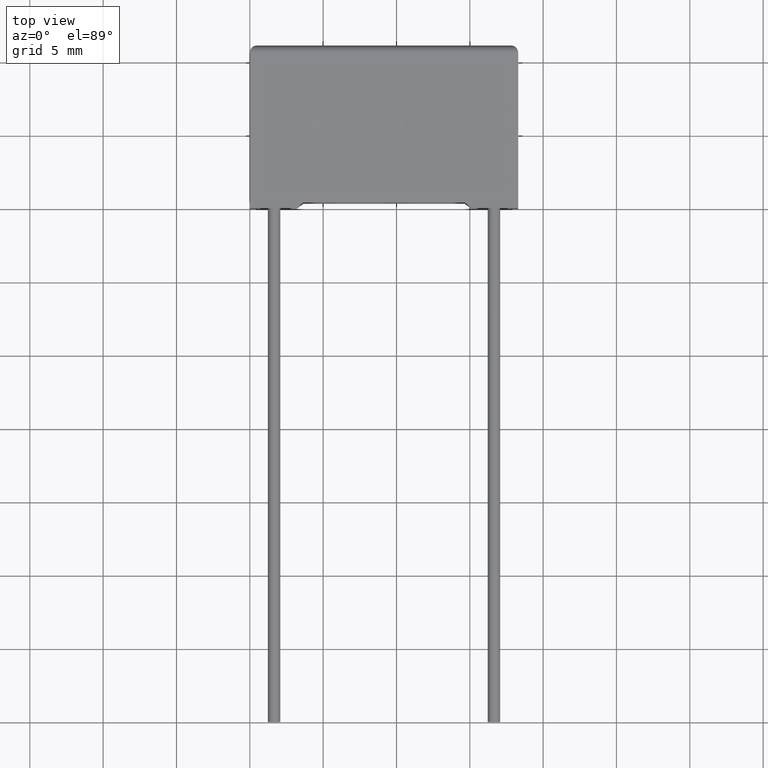
[diagram: clean part render]
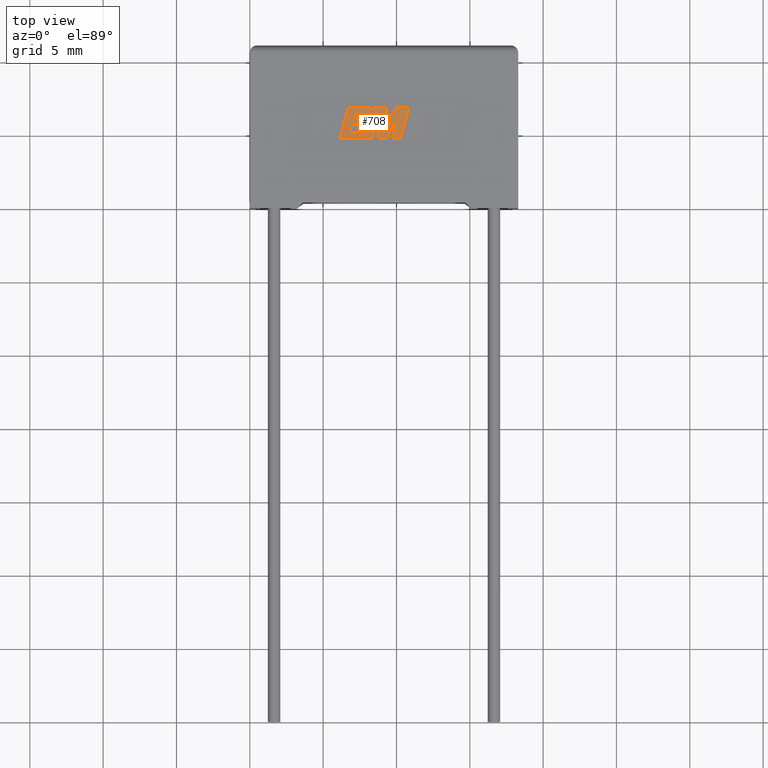
[diagram: same view with one face highlighted and labeled with its STEP entity id]
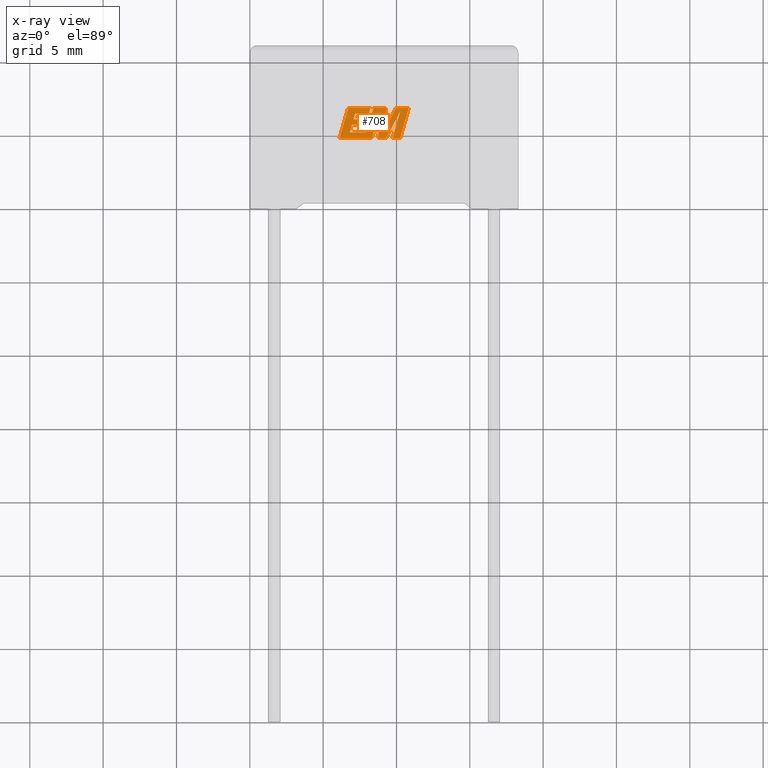
[diagram: x-ray of the same camera — body ghosted, the highlighted face saturated]
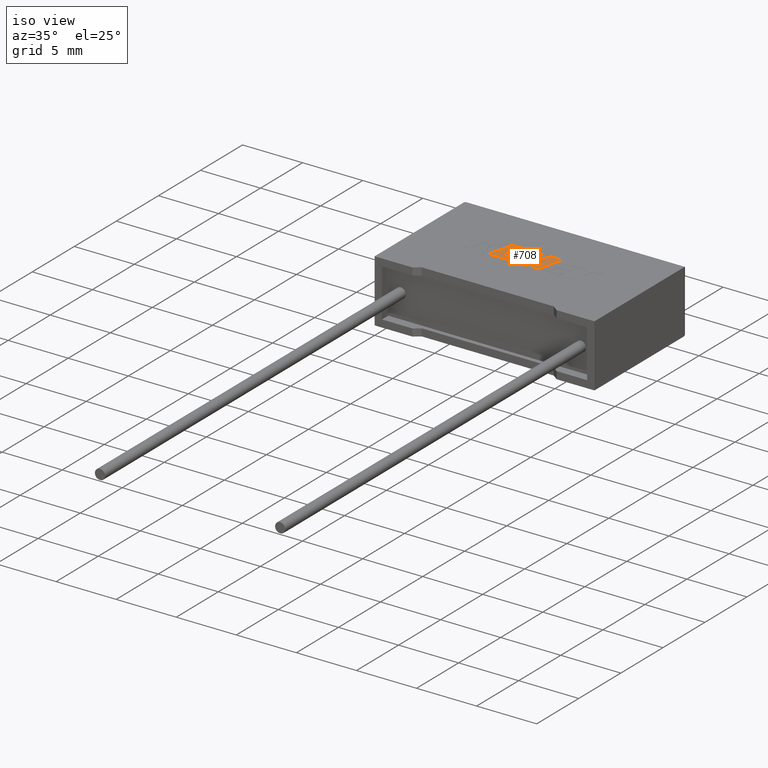
[diagram: same view with one face highlighted and labeled with its STEP entity id]
A machine part, top view. The second image highlights one B-rep face of the part: STEP entity #708.
The next image is the same camera in x-ray: the body ghosted, the highlighted face saturated — about 0% of this face is hidden behind the body in this view.
A second angle (iso view) of the same face is appended — the face is thin or edge-on in the first view.
In plain terms, the highlighted planar face has unit normal (0, 0, -1).
Its self-contained STEP definition (entity closure, byte-faithful):
#10 = VECTOR ( 'NONE', #765, 1000.000000000000000 ) ;
#58 = CARTESIAN_POINT ( 'NONE',  ( 7.950472854412912405, 5.166296892129775387, 5.204999999999999183 ) ) ;
#108 = CARTESIAN_POINT ( 'NONE',  ( 7.178404472403894232, 6.435923639161655885, 5.204999999999999183 ) ) ;
#124 = ORIENTED_EDGE ( 'NONE', *, *, #2098, .T. ) ;
#162 = EDGE_CURVE ( 'NONE', #2722, #1003, #2226, .T. ) ;
#187 = VERTEX_POINT ( 'NONE', #938 ) ;
#211 = EDGE_CURVE ( 'NONE', #187, #2741, #2285, .T. ) ;
#223 = ORIENTED_EDGE ( 'NONE', *, *, #822, .T. ) ;
#225 = VECTOR ( 'NONE', #2738, 1000.000000000000227 ) ;
#232 = DIRECTION ( 'NONE',  ( 0.2763139702539113007, 0.9610674221107073922, 0.000000000000000000 ) ) ;
#236 = DIRECTION ( 'NONE',  ( 1.000000000000000000, 4.783739767952858963E-16, 0.000000000000000000 ) ) ;
#237 = VECTOR ( 'NONE', #1536, 1000.000000000000227 ) ;
#241 = EDGE_LOOP ( 'NONE', ( #1414, #2481, #1356, #2077, #1656, #652, #1871, #223, #984, #1022, #656, #2662, #1004, #124, #2782, #2989, #335, #1482, #1600, #1500, #2815, #1972, #3020 ) ) ;
#244 = EDGE_CURVE ( 'NONE', #2741, #2144, #2576, .T. ) ;
#266 = EDGE_CURVE ( 'NONE', #2786, #2284, #2542, .T. ) ;
#280 = VECTOR ( 'NONE', #390, 1000.000000000000114 ) ;
#298 = CARTESIAN_POINT ( 'NONE',  ( 9.947927223384223083, 6.826083738474082452, 5.204999999999999183 ) ) ;
#332 = VECTOR ( 'NONE', #232, 1000.000000000000114 ) ;
#335 = ORIENTED_EDGE ( 'NONE', *, *, #1394, .T. ) ;
#344 = CARTESIAN_POINT ( 'NONE',  ( 8.223106891968908982, 6.826083738474082452, 5.204999999999999183 ) ) ;
#369 = VERTEX_POINT ( 'NONE', #298 ) ;
#381 = DIRECTION ( 'NONE',  ( 0.2732148821746286371, 0.9619530280415482526, 0.000000000000000000 ) ) ;
#390 = DIRECTION ( 'NONE',  ( 0.2740217765954066076, 0.9617234872620595842, 0.000000000000000000 ) ) ;
#392 = DIRECTION ( 'NONE',  ( -1.000000000000000000, 0.000000000000000000, 0.000000000000000000 ) ) ;
#477 = CARTESIAN_POINT ( 'NONE',  ( 6.118980910089239167, 4.776329999999934905, 5.204999999999999183 ) ) ;
#482 = CARTESIAN_POINT ( 'NONE',  ( 7.947244424658283179, 6.054669767896145416, 5.204999999999999183 ) ) ;
#489 = VECTOR ( 'NONE', #1042, 1000.000000000000000 ) ;
#499 = DIRECTION ( 'NONE',  ( 0.000000000000000000, 0.000000000000000000, -1.000000000000000000 ) ) ;
#543 = LINE ( 'NONE', #556, #2113 ) ;
#551 = VERTEX_POINT ( 'NONE', #1744 ) ;
#556 = CARTESIAN_POINT ( 'NONE',  ( 8.223106891968908982, 6.826083738474082452, 5.204999999999999183 ) ) ;
#565 = AXIS2_PLACEMENT_3D ( 'NONE', #2166, #499, #1939 ) ;
#599 = CARTESIAN_POINT ( 'NONE',  ( 7.067466152442150040, 6.054669767896145416, 5.204999999999999183 ) ) ;
#625 = CARTESIAN_POINT ( 'NONE',  ( 8.112293221804671717, 6.435923639161655885, 5.204999999999999183 ) ) ;
#652 = ORIENTED_EDGE ( 'NONE', *, *, #2582, .T. ) ;
#656 = ORIENTED_EDGE ( 'NONE', *, *, #2413, .T. ) ;
#682 = LINE ( 'NONE', #1621, #2185 ) ;
#695 = VERTEX_POINT ( 'NONE', #2133 ) ;
#708 = ADVANCED_FACE ( 'NONE', ( #2883 ), #1438, .F. ) ;
#712 = EDGE_CURVE ( 'NONE', #2562, #1914, #1954, .T. ) ;
#716 = CARTESIAN_POINT ( 'NONE',  ( 9.221647422191399102, 5.361713331603874089, 5.204999999999999183 ) ) ;
#739 = VECTOR ( 'NONE', #2919, 1000.000000000000000 ) ;
#750 = EDGE_CURVE ( 'NONE', #2425, #2015, #2009, .T. ) ;
#765 = DIRECTION ( 'NONE',  ( 0.2746459304916892830, 0.9615454294334481178, 0.000000000000000000 ) ) ;
#794 = VERTEX_POINT ( 'NONE', #852 ) ;
#822 = EDGE_CURVE ( 'NONE', #2981, #2562, #1993, .T. ) ;
#831 = LINE ( 'NONE', #1118, #739 ) ;
#833 = DIRECTION ( 'NONE',  ( 1.000000000000000000, 0.000000000000000000, 0.000000000000000000 ) ) ;
#842 = LINE ( 'NONE', #2262, #1572 ) ;
#852 = CARTESIAN_POINT ( 'NONE',  ( 8.851161128560534053, 6.601171875984305437, 5.204999999999999183 ) ) ;
#897 = LINE ( 'NONE', #935, #2892 ) ;
#934 = VECTOR ( 'NONE', #1029, 1000.000000000000000 ) ;
#935 = CARTESIAN_POINT ( 'NONE',  ( 10.84693527213674891, 6.826083738474082452, 5.204999999999999183 ) ) ;
#938 = CARTESIAN_POINT ( 'NONE',  ( 6.708817521994718369, 6.826083738474082452, 5.204999999999999183 ) ) ;
#983 = CARTESIAN_POINT ( 'NONE',  ( 7.839011005306755209, 5.675740615357458552, 5.204999999999999183 ) ) ;
#984 = ORIENTED_EDGE ( 'NONE', *, *, #712, .T. ) ;
#1003 = VERTEX_POINT ( 'NONE', #1490 ) ;
#1004 = ORIENTED_EDGE ( 'NONE', *, *, #2426, .T. ) ;
#1022 = ORIENTED_EDGE ( 'NONE', *, *, #2356, .T. ) ;
#1029 = DIRECTION ( 'NONE',  ( -1.000000000000000000, 0.000000000000000000, 0.000000000000000000 ) ) ;
#1042 = DIRECTION ( 'NONE',  ( 0.4668459304955080436, 0.8843386665637680277, 0.000000000000000000 ) ) ;
#1064 = LINE ( 'NONE', #1788, #2447 ) ;
#1081 = CARTESIAN_POINT ( 'NONE',  ( 6.118980910089239167, 4.776329999999934905, 5.204999999999999183 ) ) ;
#1097 = CARTESIAN_POINT ( 'NONE',  ( 7.178404472403894232, 6.435923639161655885, 5.204999999999999183 ) ) ;
#1112 = VECTOR ( 'NONE', #236, 1000.000000000000000 ) ;
#1115 = EDGE_CURVE ( 'NONE', #794, #2617, #682, .T. ) ;
#1118 = CARTESIAN_POINT ( 'NONE',  ( 7.947244424658283179, 6.054669767896145416, 5.204999999999999183 ) ) ;
#1141 = VERTEX_POINT ( 'NONE', #1341 ) ;
#1176 = CARTESIAN_POINT ( 'NONE',  ( 6.708817521994718369, 6.826083738474082452, 5.204999999999999183 ) ) ;
#1231 = VERTEX_POINT ( 'NONE', #716 ) ;
#1267 = VERTEX_POINT ( 'NONE', #1776 ) ;
#1292 = LINE ( 'NONE', #1806, #225 ) ;
#1321 = CARTESIAN_POINT ( 'NONE',  ( 9.221647422191399102, 5.361713331603874089, 5.204999999999999183 ) ) ;
#1341 = CARTESIAN_POINT ( 'NONE',  ( 9.300475089700450226, 6.826083738474082452, 5.204999999999999183 ) ) ;
#1356 = ORIENTED_EDGE ( 'NONE', *, *, #1367, .T. ) ;
#1367 = EDGE_CURVE ( 'NONE', #1231, #1141, #2689, .T. ) ;
#1394 = EDGE_CURVE ( 'NONE', #2144, #794, #1292, .T. ) ;
#1414 = ORIENTED_EDGE ( 'NONE', *, *, #1484, .T. ) ;
#1437 = VERTEX_POINT ( 'NONE', #2088 ) ;
#1438 = PLANE ( 'NONE',  #565 ) ;
#1458 = EDGE_CURVE ( 'NONE', #1437, #551, #3039, .T. ) ;
#1466 = DIRECTION ( 'NONE',  ( 1.000000000000000000, 0.000000000000000000, 0.000000000000000000 ) ) ;
#1477 = LINE ( 'NONE', #2007, #489 ) ;
#1479 = CARTESIAN_POINT ( 'NONE',  ( 6.959357382888240018, 5.675740615357458552, 5.204999999999999183 ) ) ;
#1482 = ORIENTED_EDGE ( 'NONE', *, *, #1115, .T. ) ;
#1484 = EDGE_CURVE ( 'NONE', #551, #369, #897, .T. ) ;
#1489 = EDGE_CURVE ( 'NONE', #369, #1231, #1579, .T. ) ;
#1490 = CARTESIAN_POINT ( 'NONE',  ( 8.112293221804671717, 6.435923639161655885, 5.204999999999999183 ) ) ;
#1493 = VECTOR ( 'NONE', #2900, 1000.000000000000000 ) ;
#1500 = ORIENTED_EDGE ( 'NONE', *, *, #2044, .T. ) ;
#1520 = DIRECTION ( 'NONE',  ( 0.05375259206908576670, 0.9985542843760946141, 0.000000000000000000 ) ) ;
#1528 = CARTESIAN_POINT ( 'NONE',  ( 8.427557490167984611, 6.826083738474082452, 5.204999999999999183 ) ) ;
#1536 = DIRECTION ( 'NONE',  ( 0.2793947940878294123, 0.9601763114327593884, 0.000000000000000000 ) ) ;
#1543 = LINE ( 'NONE', #1770, #280 ) ;
#1564 = VECTOR ( 'NONE', #1881, 1000.000000000000227 ) ;
#1571 = EDGE_CURVE ( 'NONE', #2617, #2268, #1940, .T. ) ;
#1572 = VECTOR ( 'NONE', #2946, 1000.000000000000000 ) ;
#1579 = LINE ( 'NONE', #2794, #1564 ) ;
#1600 = ORIENTED_EDGE ( 'NONE', *, *, #1571, .T. ) ;
#1615 = DIRECTION ( 'NONE',  ( -0.2760118818968579912, -0.9611542233438683525, 0.000000000000000000 ) ) ;
#1621 = CARTESIAN_POINT ( 'NONE',  ( 8.851161128560534053, 6.601171875984305437, 5.204999999999999183 ) ) ;
#1622 = VECTOR ( 'NONE', #381, 1000.000000000000227 ) ;
#1656 = ORIENTED_EDGE ( 'NONE', *, *, #750, .T. ) ;
#1701 = CARTESIAN_POINT ( 'NONE',  ( 9.295319520239521793, 4.776329999999935794, 5.204999999999999183 ) ) ;
#1704 = VECTOR ( 'NONE', #2559, 999.9999999999998863 ) ;
#1715 = CARTESIAN_POINT ( 'NONE',  ( 8.748873504561524683, 4.776329999999935794, 5.204999999999999183 ) ) ;
#1744 = CARTESIAN_POINT ( 'NONE',  ( 10.84693527213674891, 6.826083738474082452, 5.204999999999999183 ) ) ;
#1770 = CARTESIAN_POINT ( 'NONE',  ( 6.814202693454946669, 5.166296892129775387, 5.204999999999999183 ) ) ;
#1776 = CARTESIAN_POINT ( 'NONE',  ( 6.814202693454946669, 5.166296892129775387, 5.204999999999999183 ) ) ;
#1786 = EDGE_CURVE ( 'NONE', #1267, #2981, #1543, .T. ) ;
#1788 = CARTESIAN_POINT ( 'NONE',  ( 9.300475089700450226, 6.826083738474082452, 5.204999999999999183 ) ) ;
#1794 = VERTEX_POINT ( 'NONE', #344 ) ;
#1796 = DIRECTION ( 'NONE',  ( -0.05596501978069369498, -0.9984327301130239141, 0.000000000000000000 ) ) ;
#1806 = CARTESIAN_POINT ( 'NONE',  ( 8.327195703898469858, 4.776329999999935794, 5.204999999999999183 ) ) ;
#1848 = DIRECTION ( 'NONE',  ( -1.000000000000000000, 0.000000000000000000, 0.000000000000000000 ) ) ;
#1871 = ORIENTED_EDGE ( 'NONE', *, *, #1786, .T. ) ;
#1881 = DIRECTION ( 'NONE',  ( -0.4443210308329518243, -0.8958676361826801715, 0.000000000000000000 ) ) ;
#1908 = CARTESIAN_POINT ( 'NONE',  ( 7.839011005306755209, 5.675740615357458552, 5.204999999999999183 ) ) ;
#1914 = VERTEX_POINT ( 'NONE', #482 ) ;
#1939 = DIRECTION ( 'NONE',  ( -1.000000000000000000, 0.000000000000000000, 0.000000000000000000 ) ) ;
#1940 = LINE ( 'NONE', #2825, #2692 ) ;
#1944 = CARTESIAN_POINT ( 'NONE',  ( 9.736741848859448822, 4.776329999999935794, 5.204999999999999183 ) ) ;
#1954 = LINE ( 'NONE', #1908, #10 ) ;
#1972 = ORIENTED_EDGE ( 'NONE', *, *, #2770, .T. ) ;
#1993 = LINE ( 'NONE', #1479, #1493 ) ;
#2007 = CARTESIAN_POINT ( 'NONE',  ( 9.295319520239521793, 4.776329999999935794, 5.204999999999999183 ) ) ;
#2009 = LINE ( 'NONE', #1528, #2142 ) ;
#2015 = VERTEX_POINT ( 'NONE', #2696 ) ;
#2020 = CARTESIAN_POINT ( 'NONE',  ( 8.427557490167984611, 6.826083738474082452, 5.204999999999999183 ) ) ;
#2044 = EDGE_CURVE ( 'NONE', #2268, #2786, #1477, .T. ) ;
#2077 = ORIENTED_EDGE ( 'NONE', *, *, #2789, .T. ) ;
#2088 = CARTESIAN_POINT ( 'NONE',  ( 10.25761595853780150, 4.776329999999935794, 5.204999999999999183 ) ) ;
#2098 = EDGE_CURVE ( 'NONE', #1794, #187, #543, .T. ) ;
#2113 = VECTOR ( 'NONE', #2187, 1000.000000000000000 ) ;
#2133 = CARTESIAN_POINT ( 'NONE',  ( 7.067466152442150040, 6.054669767896145416, 5.204999999999999183 ) ) ;
#2142 = VECTOR ( 'NONE', #2478, 1000.000000000000227 ) ;
#2144 = VERTEX_POINT ( 'NONE', #2364 ) ;
#2166 = CARTESIAN_POINT ( 'NONE',  ( -0.2224830842431323175, -1.858056502638177898, 5.204999999999999183 ) ) ;
#2185 = VECTOR ( 'NONE', #1796, 1000.000000000000227 ) ;
#2187 = DIRECTION ( 'NONE',  ( -1.000000000000000000, 0.000000000000000000, 0.000000000000000000 ) ) ;
#2218 = CARTESIAN_POINT ( 'NONE',  ( 10.26329998931311138, 6.609959686718481109, 5.204999999999999183 ) ) ;
#2226 = LINE ( 'NONE', #108, #2271 ) ;
#2262 = CARTESIAN_POINT ( 'NONE',  ( 9.736741848859448822, 4.776329999999935794, 5.204999999999999183 ) ) ;
#2268 = VERTEX_POINT ( 'NONE', #1701 ) ;
#2271 = VECTOR ( 'NONE', #833, 1000.000000000000000 ) ;
#2284 = VERTEX_POINT ( 'NONE', #1944 ) ;
#2285 = LINE ( 'NONE', #1176, #1704 ) ;
#2298 = CARTESIAN_POINT ( 'NONE',  ( 10.26329998931311138, 6.609959686718481109, 5.204999999999999183 ) ) ;
#2356 = EDGE_CURVE ( 'NONE', #1914, #695, #831, .T. ) ;
#2364 = CARTESIAN_POINT ( 'NONE',  ( 8.327195703898469858, 4.776329999999935794, 5.204999999999999183 ) ) ;
#2383 = CARTESIAN_POINT ( 'NONE',  ( 6.959357382888240018, 5.675740615357458552, 5.204999999999999183 ) ) ;
#2413 = EDGE_CURVE ( 'NONE', #695, #2722, #2708, .T. ) ;
#2425 = VERTEX_POINT ( 'NONE', #2020 ) ;
#2426 = EDGE_CURVE ( 'NONE', #1003, #1794, #2484, .T. ) ;
#2447 = VECTOR ( 'NONE', #392, 1000.000000000000000 ) ;
#2478 = DIRECTION ( 'NONE',  ( -0.2762517575166416606, -0.9610853065513833560, 0.000000000000000000 ) ) ;
#2481 = ORIENTED_EDGE ( 'NONE', *, *, #1489, .T. ) ;
#2484 = LINE ( 'NONE', #625, #1622 ) ;
#2542 = LINE ( 'NONE', #2298, #2818 ) ;
#2559 = DIRECTION ( 'NONE',  ( -0.2765379750249963853, -0.9610029908221278117, 0.000000000000000000 ) ) ;
#2562 = VERTEX_POINT ( 'NONE', #983 ) ;
#2576 = LINE ( 'NONE', #477, #1112 ) ;
#2582 = EDGE_CURVE ( 'NONE', #2015, #1267, #2665, .T. ) ;
#2617 = VERTEX_POINT ( 'NONE', #1715 ) ;
#2662 = ORIENTED_EDGE ( 'NONE', *, *, #162, .T. ) ;
#2665 = LINE ( 'NONE', #58, #934 ) ;
#2689 = LINE ( 'NONE', #1321, #2928 ) ;
#2692 = VECTOR ( 'NONE', #1466, 1000.000000000000000 ) ;
#2696 = CARTESIAN_POINT ( 'NONE',  ( 7.950472854412912405, 5.166296892129775387, 5.204999999999999183 ) ) ;
#2708 = LINE ( 'NONE', #599, #237 ) ;
#2722 = VERTEX_POINT ( 'NONE', #1097 ) ;
#2738 = DIRECTION ( 'NONE',  ( 0.2759782365590697228, 0.9611638845408965182, 0.000000000000000000 ) ) ;
#2741 = VERTEX_POINT ( 'NONE', #1081 ) ;
#2770 = EDGE_CURVE ( 'NONE', #2284, #1437, #842, .T. ) ;
#2782 = ORIENTED_EDGE ( 'NONE', *, *, #211, .T. ) ;
#2786 = VERTEX_POINT ( 'NONE', #2218 ) ;
#2789 = EDGE_CURVE ( 'NONE', #1141, #2425, #1064, .T. ) ;
#2794 = CARTESIAN_POINT ( 'NONE',  ( 9.947927223384223083, 6.826083738474082452, 5.204999999999999183 ) ) ;
#2815 = ORIENTED_EDGE ( 'NONE', *, *, #266, .T. ) ;
#2818 = VECTOR ( 'NONE', #1615, 1000.000000000000227 ) ;
#2825 = CARTESIAN_POINT ( 'NONE',  ( 8.748873504561524683, 4.776329999999935794, 5.204999999999999183 ) ) ;
#2883 = FACE_OUTER_BOUND ( 'NONE', #241, .T. ) ;
#2892 = VECTOR ( 'NONE', #1848, 1000.000000000000000 ) ;
#2900 = DIRECTION ( 'NONE',  ( 1.000000000000000000, 0.000000000000000000, 0.000000000000000000 ) ) ;
#2919 = DIRECTION ( 'NONE',  ( -1.000000000000000000, 0.000000000000000000, 0.000000000000000000 ) ) ;
#2928 = VECTOR ( 'NONE', #1520, 1000.000000000000000 ) ;
#2946 = DIRECTION ( 'NONE',  ( 1.000000000000000000, 0.000000000000000000, 0.000000000000000000 ) ) ;
#2981 = VERTEX_POINT ( 'NONE', #2383 ) ;
#2989 = ORIENTED_EDGE ( 'NONE', *, *, #244, .T. ) ;
#3020 = ORIENTED_EDGE ( 'NONE', *, *, #1458, .T. ) ;
#3024 = CARTESIAN_POINT ( 'NONE',  ( 10.25761595853780150, 4.776329999999935794, 5.204999999999999183 ) ) ;
#3039 = LINE ( 'NONE', #3024, #332 ) ;